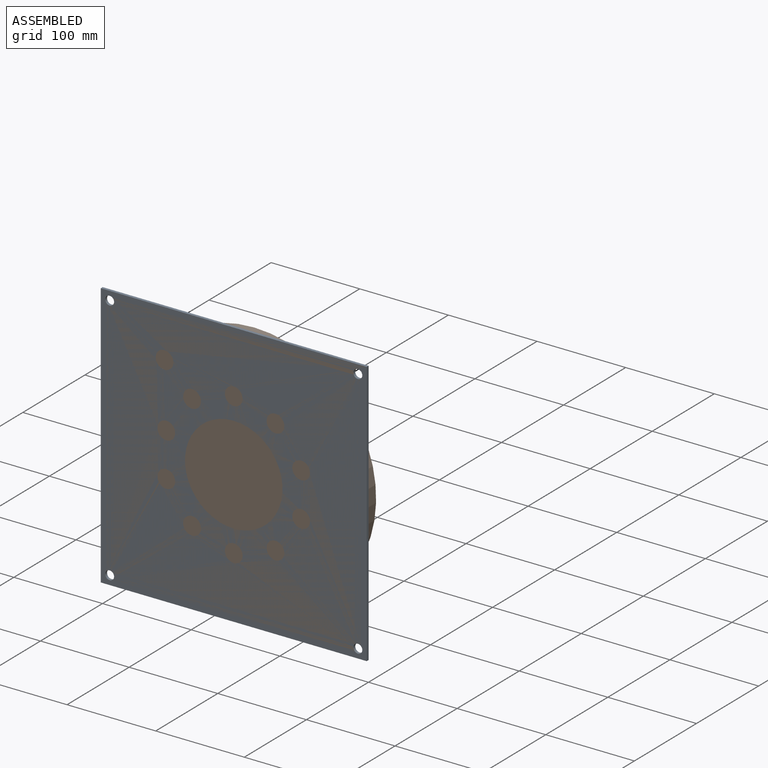
[diagram: assembled view]
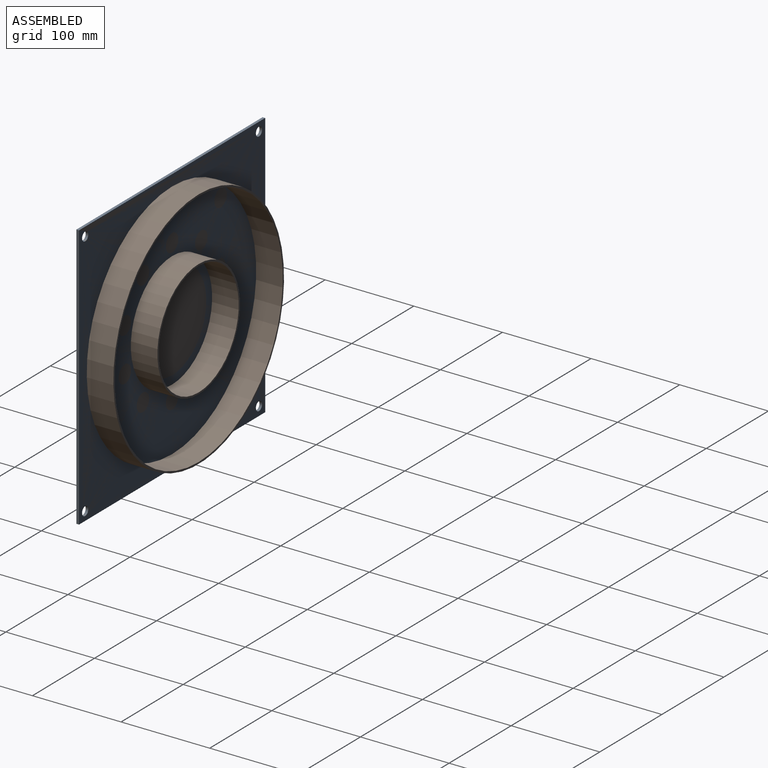
[diagram: assembled view, second angle]
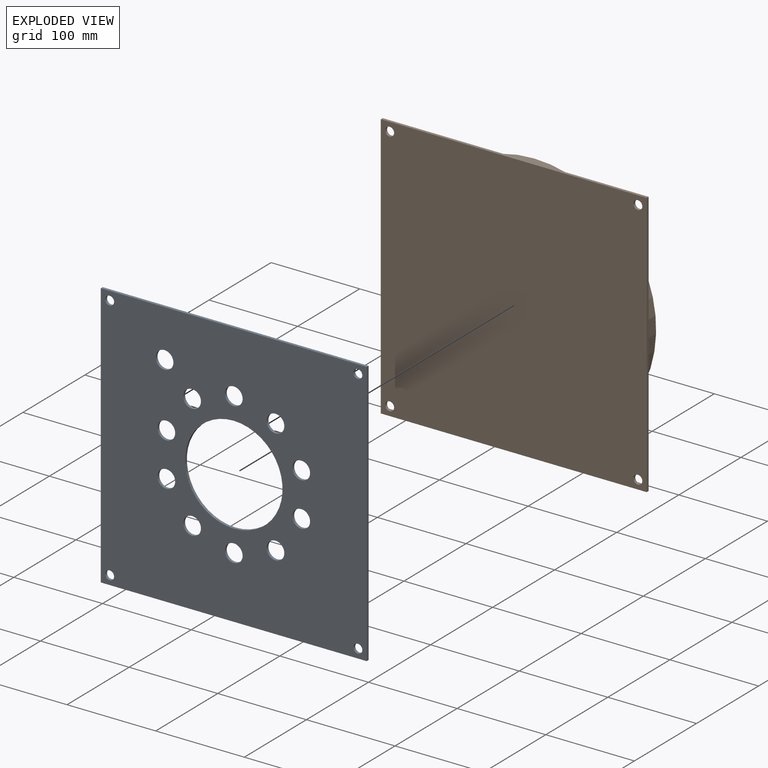
[diagram: exploded view]
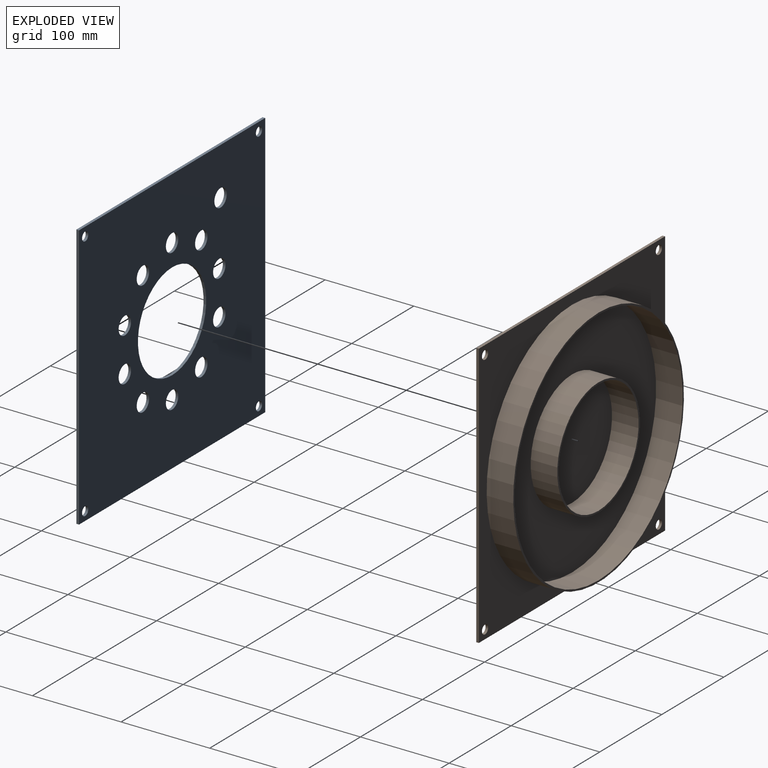
[diagram: exploded view, second angle]
ASSEMBLY  parts=2 mates=2
PART A: 22 faces, bbox 300x3x300 mm
  f0: plane 300x3mm, normal (-1,0,0), area 900mm2, adj f1,f3,f4,f5
  f1: plane 300x3mm, normal (0,0,-1), area 900mm2, adj f0,f2,f4,f5
  f2: plane 300x3mm, normal (1,0,0), area 900mm2, adj f1,f3,f4,f5
  f3: plane 300x3mm, normal (0,0,1), area 900mm2, adj f0,f2,f4,f5
  f4: plane 300x300mm, normal (0,-1,0), area 76726.8mm2, adj f0,f1,f2,f3,f6,f7,f8,f9
  f5: plane 300x300mm, normal (0,1,0), area 76726.8mm2, adj f0,f1,f2,f3,f6,f7,f8,f9
  f6: cylinder r=10mm len=20mm, axis (0,-1,0), area 188.5mm2, adj f4,f5
  f7: cylinder r=55mm len=110mm, axis (0,-1,0), area 1036.7mm2, adj f4,f5
  f8: cylinder r=10mm len=20mm, axis (0,-1,0), area 188.5mm2, adj f4,f5
  f9: cylinder r=10mm len=20mm, axis (0,-1,0), area 188.5mm2, adj f4,f5
  f10: cylinder r=10mm len=20mm, axis (0,-1,0), area 188.5mm2, adj f4,f5
  f11: cylinder r=10mm len=20mm, axis (0,-1,0), area 188.5mm2, adj f4,f5
  f12: cylinder r=10mm len=20mm, axis (0,-1,0), area 188.5mm2, adj f4,f5
  f13: cylinder r=10mm len=20mm, axis (0,-1,0), area 188.5mm2, adj f4,f5
  f14: cylinder r=10mm len=20mm, axis (0,-1,0), area 188.5mm2, adj f4,f5
  f15: cylinder r=10mm len=20mm, axis (0,-1,0), area 188.5mm2, adj f4,f5
  f16: cylinder r=10mm len=20mm, axis (0,-1,0), area 188.5mm2, adj f4,f5
  f17: cylinder r=5mm len=10mm, axis (0,1,0), area 94.2mm2, adj f4,f5
  f18: cylinder r=5mm len=10mm, axis (0,1,0), area 94.2mm2, adj f4,f5
  f19: cylinder r=5mm len=10mm, axis (0,1,0), area 94.2mm2, adj f4,f5
  f20: cylinder r=5mm len=10mm, axis (0,1,0), area 94.2mm2, adj f4,f5
  f21: cylinder r=10mm len=20mm, axis (0,1,0), area 188.5mm2, adj f4,f5
PART B: 18 faces, bbox 300x33x300 mm
  f0: plane 300x3mm, normal (-1,0,0), area 900mm2, adj f1,f3,f4,f5
  f1: plane 300x3mm, normal (0,0,-1), area 900mm2, adj f0,f2,f4,f5
  f2: plane 300x3mm, normal (1,0,0), area 900mm2, adj f1,f3,f4,f5
  f3: plane 300x3mm, normal (0,0,1), area 900mm2, adj f0,f2,f4,f5
  f4: plane 300x300mm, normal (0,-1,0), area 89685.8mm2, adj f0,f1,f2,f3,f6,f7,f8,f9
  f5: plane 300x300mm, normal (0,1,0), area 30290.1mm2, adj f0,f1,f2,f3,f6,f7,f8,f9
  f6: cylinder r=5mm len=10mm, axis (0,-1,0), area 94.2mm2, adj f4,f5
  f7: cylinder r=5mm len=10mm, axis (0,-1,0), area 94.2mm2, adj f4,f5
  f8: cylinder r=5mm len=10mm, axis (0,-1,0), area 94.2mm2, adj f4,f5
  f9: cylinder r=5mm len=10mm, axis (0,-1,0), area 94.2mm2, adj f4,f5
  f10: cylinder r=135.5mm len=271mm, axis (0,-1,0), area 25541.1mm2, adj f12,f13
  f11: cylinder r=137.5mm len=275mm, axis (0,-1,0), area 25918.1mm2, adj f5,f12
  f12: plane 275x275mm, normal (0,1,0), area 1715.3mm2, adj f10,f11
  f13: plane 271x271mm, normal (0,1,0), area 43787.5mm2, adj f10,f15
  f14: cylinder r=64.5mm len=129mm, axis (0,-1,0), area 12158mm2, adj f16,f17
  f15: cylinder r=66.5mm len=133mm, axis (0,-1,0), area 12535mm2, adj f13,f16
  f16: plane 133x133mm, normal (0,1,0), area 823.1mm2, adj f14,f15
  f17: plane 129x129mm, normal (0,1,0), area 13069.8mm2, adj f14
PLACE A t=(-19.86,-71.41,-202.86)mm
PLACE B t=(-19.86,-71.41,-202.86)mm
MATE cylindrical A.f18 <-> B.f9  axis (0,1,0) through (-9.86,-72.91,-192.86)mm
MATE parallel B.f10 <-> A.f17  axis (0,1,0) through (130.14,-71.41,-52.86)mm
